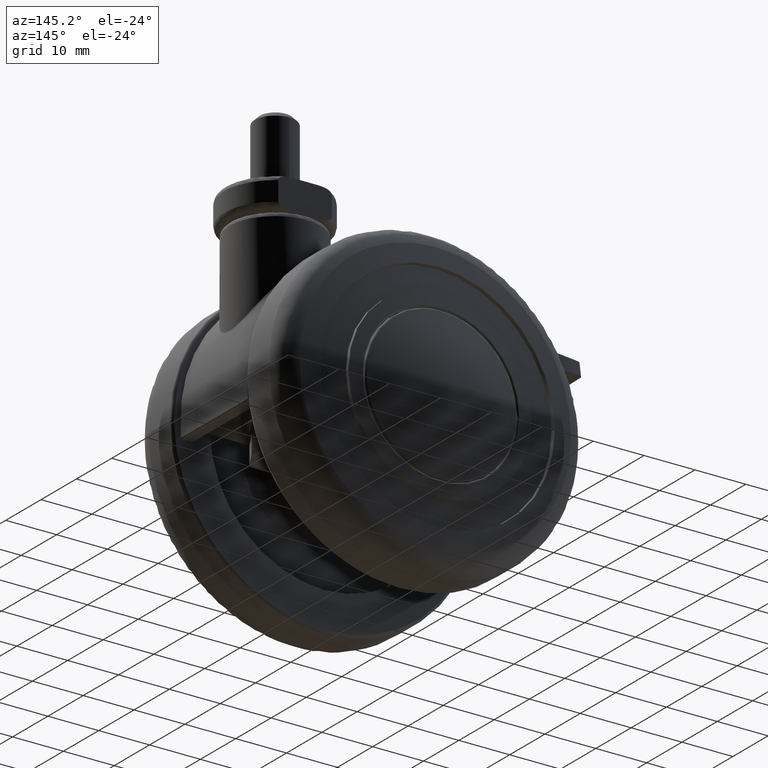
[diagram: clean part render]
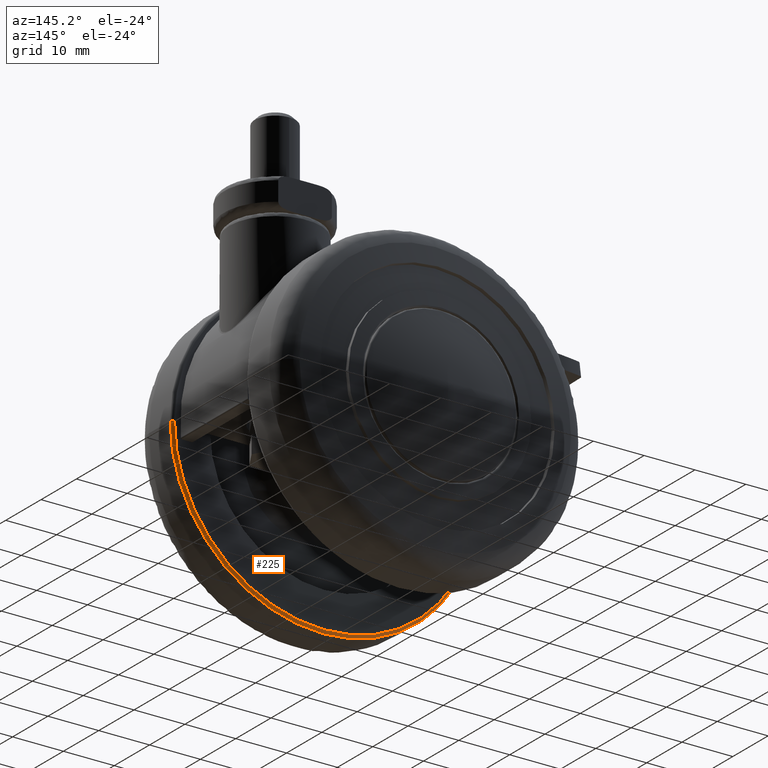
[diagram: same view with one face highlighted and labeled with its STEP entity id]
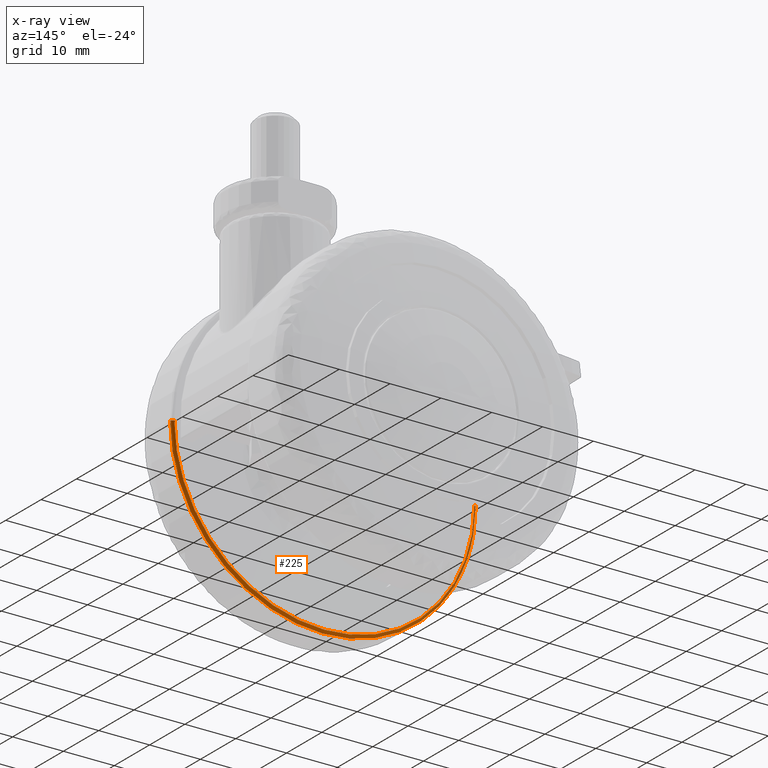
[diagram: x-ray of the same camera — body ghosted, the highlighted face saturated]
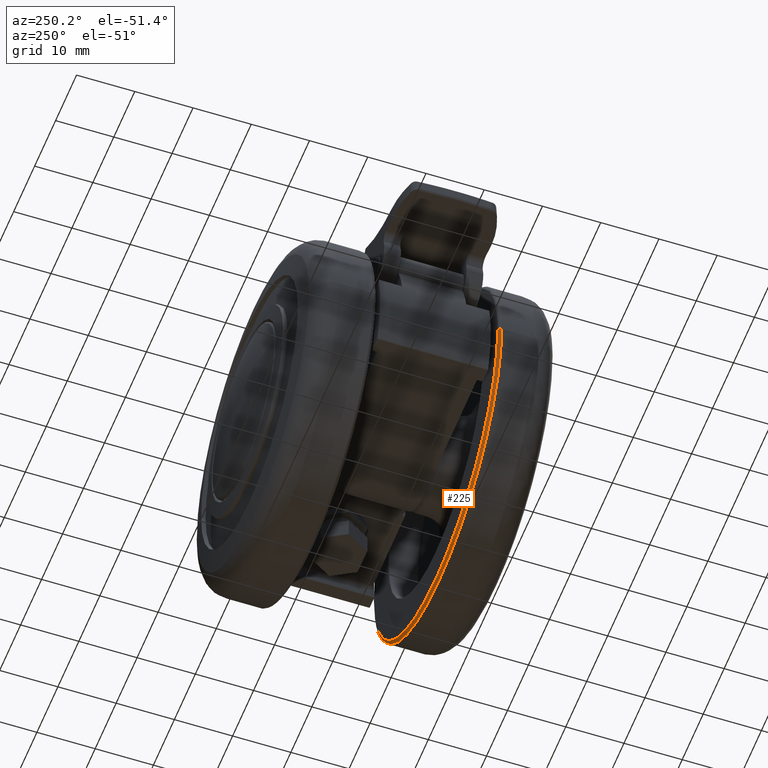
[diagram: same view with one face highlighted and labeled with its STEP entity id]
A machine part, auxiliary view. The second image highlights one B-rep face of the part: STEP entity #225.
The next image is the same camera in x-ray: the body ghosted, the highlighted face saturated — about 9% of this face is hidden behind the body in this view.
A second angle (auxiliary view) of the same face is appended — the face is thin or edge-on in the first view.
In plain terms, the highlighted face is a freeform B-spline surface patch.
Its self-contained STEP definition (entity closure, byte-faithful):
#225=ADVANCED_FACE('',(#724),#723,.T.);
#723=( BOUNDED_SURFACE() B_SPLINE_SURFACE( 2,2,((#3463,#3464,#3465,#3466,#3467),(#3468,#3469,#3470,#3471,#3472),(#3473,#3474,#3475,#3476,#3477),(#3478,#3479,#3480,#3481,#3482),(#3483,#3484,#3485,#3486,#3487)), .UNSPECIFIED.,.F.,.F.,.F.) B_SPLINE_SURFACE_WITH_KNOTS((3,2,3),(3,2,3),(0.00000000000E+00,5.00000000000E-01,1.00000000000E+00),(0.00000000000E+00,5.00000000000E-01,1.00000000000E+00), .UNSPECIFIED. ) GEOMETRIC_REPRESENTATION_ITEM() RATIONAL_B_SPLINE_SURFACE(((1.00000000000E+00,7.07106781187E-01,1.00000000000E+00,7.07106781187E-01,1.00000000000E+00),(7.07106781187E-01,5.00000000000E-01,7.07106781187E-01,5.00000000000E-01,7.07106781187E-01),(1.00000000000E+00,7.07106781187E-01,1.00000000000E+00,7.07106781187E-01,1.00000000000E+00),(7.07106781187E-01,5.00000000000E-01,7.07106781187E-01,5.00000000000E-01,7.07106781187E-01),(1.00000000000E+00,7.07106781187E-01,1.00000000000E+00,7.07106781187E-01,1.00000000000E+00))) REPRESENTATION_ITEM('') SURFACE() );
#724=FACE_OUTER_BOUND('',#3488,.T.);
#3463=CARTESIAN_POINT('',(-2.90000000000E+01,-3.55135842608E-15,2.50000000000E+00));
#3464=CARTESIAN_POINT('',(-2.90000000000E+01,-3.55135842608E-15,2.00000000000E+00));
#3465=CARTESIAN_POINT('',(-2.95000000000E+01,-3.61258874378E-15,2.00000000000E+00));
#3466=CARTESIAN_POINT('',(-3.00000000000E+01,-3.67381906147E-15,2.00000000000E+00));
#3467=CARTESIAN_POINT('',(-3.00000000000E+01,-3.67381906147E-15,2.50000000000E+00));
#3468=CARTESIAN_POINT('',(-2.90000000000E+01,-2.90000000000E+01,2.50000000000E+00));
#3469=CARTESIAN_POINT('',(-2.90000000000E+01,-2.90000000000E+01,2.00000000000E+00));
#3470=CARTESIAN_POINT('',(-2.95000000000E+01,-2.95000000000E+01,2.00000000000E+00));
#3471=CARTESIAN_POINT('',(-3.00000000000E+01,-3.00000000000E+01,2.00000000000E+00));
#3472=CARTESIAN_POINT('',(-3.00000000000E+01,-3.00000000000E+01,2.50000000000E+00));
#3473=CARTESIAN_POINT('',(1.77562056732E-15,-2.90000000000E+01,2.50000000000E+00));
#3474=CARTESIAN_POINT('',(1.77562056732E-15,-2.90000000000E+01,2.00000000000E+00));
#3475=CARTESIAN_POINT('',(1.80623471503E-15,-2.95000000000E+01,2.00000000000E+00));
#3476=CARTESIAN_POINT('',(1.83684886275E-15,-3.00000000000E+01,2.00000000000E+00));
#3477=CARTESIAN_POINT('',(1.83684886275E-15,-3.00000000000E+01,2.50000000000E+00));
#3478=CARTESIAN_POINT('',(2.90000000000E+01,-2.90000000000E+01,2.50000000000E+00));
#3479=CARTESIAN_POINT('',(2.90000000000E+01,-2.90000000000E+01,2.00000000000E+00));
#3480=CARTESIAN_POINT('',(2.95000000000E+01,-2.95000000000E+01,2.00000000000E+00));
#3481=CARTESIAN_POINT('',(3.00000000000E+01,-3.00000000000E+01,2.00000000000E+00));
#3482=CARTESIAN_POINT('',(3.00000000000E+01,-3.00000000000E+01,2.50000000000E+00));
#3483=CARTESIAN_POINT('',(2.90000000000E+01,-1.17291442430E-19,2.50000000000E+00));
#3484=CARTESIAN_POINT('',(2.90000000000E+01,-1.17291442430E-19,2.00000000000E+00));
#3485=CARTESIAN_POINT('',(2.95000000000E+01,-1.19313708679E-19,2.00000000000E+00));
#3486=CARTESIAN_POINT('',(3.00000000000E+01,-1.21335974928E-19,2.00000000000E+00));
#3487=CARTESIAN_POINT('',(3.00000000000E+01,-1.21335974927E-19,2.50000000000E+00));
#3488=EDGE_LOOP('',(#5925,#5926,#5927,#5928));
#5925=ORIENTED_EDGE('',*,*,#7014,.F.);
#5926=ORIENTED_EDGE('',*,*,#7015,.F.);
#5927=ORIENTED_EDGE('',*,*,#6953,.F.);
#5928=ORIENTED_EDGE('',*,*,#7016,.T.);
#6953=EDGE_CURVE('',#7625,#7626,#7627,.T.);
#7014=EDGE_CURVE('',#8031,#8032,#8033,.T.);
#7015=EDGE_CURVE('',#7626,#8031,#8039,.T.);
#7016=EDGE_CURVE('',#7625,#8032,#8045,.T.);
#7625=VERTEX_POINT('',#11408);
#7626=VERTEX_POINT('',#11409);
#7627=CIRCLE('',#11413,2.95000000000E+01);
#8031=VERTEX_POINT('',#11674);
#8032=VERTEX_POINT('',#11675);
#8033=CIRCLE('',#11679,3.00000000000E+01);
#8039=(BOUNDED_CURVE() B_SPLINE_CURVE(2,(#11680,#11681,#11682),.UNSPECIFIED.,.F.,.F.) B_SPLINE_CURVE_WITH_KNOTS((3,3),(5.00000000000E-01,1.00000000000E+00),.UNSPECIFIED.) CURVE() GEOMETRIC_REPRESENTATION_ITEM() RATIONAL_B_SPLINE_CURVE((1.00000000000E+00,7.07106781187E-01,1.00000000000E+00)) REPRESENTATION_ITEM('') );
#8045=(BOUNDED_CURVE() B_SPLINE_CURVE(3,(#11683,#11684,#11685,#11686),.UNSPECIFIED.,.F.,.F.) B_SPLINE_CURVE_WITH_KNOTS((4,4),(4.99998681775E-01,1.00000000000E+00),.UNSPECIFIED.) CURVE() GEOMETRIC_REPRESENTATION_ITEM() RATIONAL_B_SPLINE_CURVE((1.00000000000E+00,1.00000000000E+00,1.00000000000E+00,1.00000000000E+00)) REPRESENTATION_ITEM('') );
#11408=CARTESIAN_POINT('',(2.95000000000E+01,-3.07354836874E-17,2.00000000000E+00));
#11409=CARTESIAN_POINT('',(-2.95000000000E+01,-8.28966525053E-15,2.00000000000E+00));
#11410=CARTESIAN_POINT('',(0.00000000000E+00,0.00000000000E+00,2.00000000000E+00));
#11411=DIRECTION('',(0.00000000000E+00,0.00000000000E+00,-1.00000000000E+00));
#11412=DIRECTION('',(1.00000000000E+00,-1.23502516185E-16,-0.00000000000E+00));
#11413=AXIS2_PLACEMENT_3D('',#11410,#11411,#11412);
#11674=CARTESIAN_POINT('',(-3.00000000000E+01,2.36847578587E-15,2.50000000000E+00));
#11675=CARTESIAN_POINT('',(3.00000000000E+01,0.00000000000E+00,2.50000000000E+00));
#11676=CARTESIAN_POINT('',(0.00000000000E+00,0.00000000000E+00,2.50000000000E+00));
#11677=DIRECTION('',(0.00000000000E+00,0.00000000000E+00,1.00000000000E+00));
#11678=DIRECTION('',(1.00000000000E+00,-1.22460635382E-16,0.00000000000E+00));
#11679=AXIS2_PLACEMENT_3D('',#11676,#11677,#11678);
#11680=CARTESIAN_POINT('',(-2.95000000000E+01,-3.61258874378E-15,2.00000000000E+00));
#11681=CARTESIAN_POINT('',(-3.00000000000E+01,-3.67381906147E-15,2.00000000000E+00));
#11682=CARTESIAN_POINT('',(-3.00000000000E+01,-3.67381906147E-15,2.50000000000E+00));
#11683=CARTESIAN_POINT('',(2.94999981357E+01,4.73694639872E-15,2.00000000000E+00));
#11684=CARTESIAN_POINT('',(2.98047369532E+01,3.97070011560E-15,2.02859457831E+00));
#11685=CARTESIAN_POINT('',(2.99714042413E+01,3.97070183994E-15,2.19526124498E+00));
#11686=CARTESIAN_POINT('',(3.00000000000E+01,4.73695157173E-15,2.50000000000E+00));